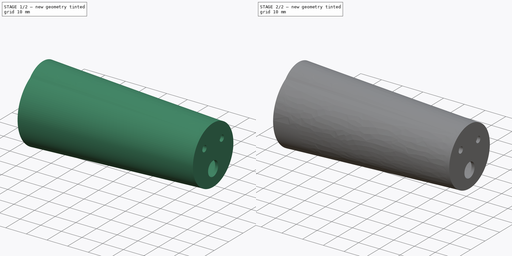
[diagram: build sequence overview — one tinted view per stage of 2, left to right]
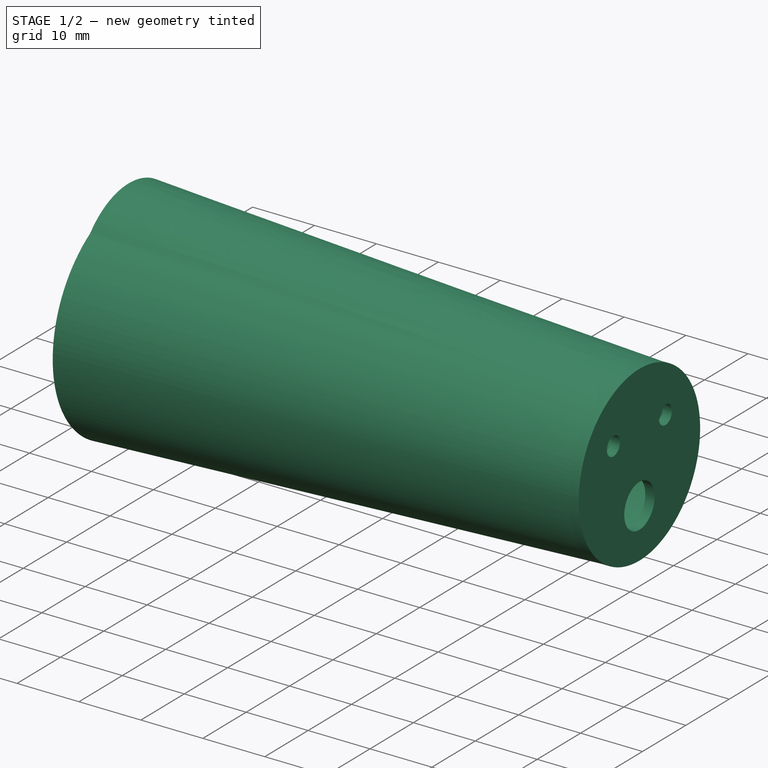
[diagram: stage 1 of 2 — iso view after this stage's code; geometry added in this stage tinted green]
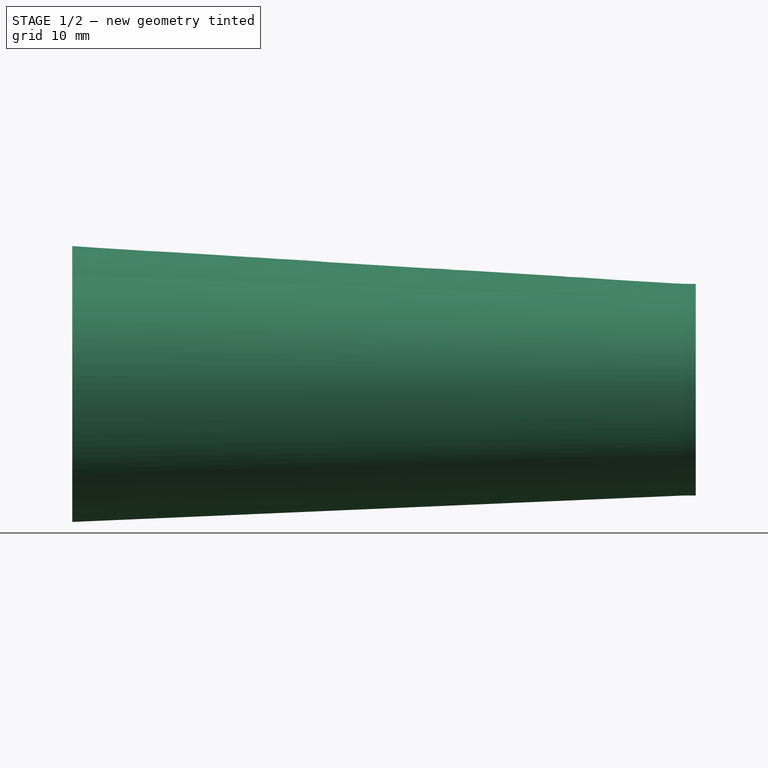
[diagram: stage 1 of 2 — front view after this stage's code; geometry added in this stage tinted green]
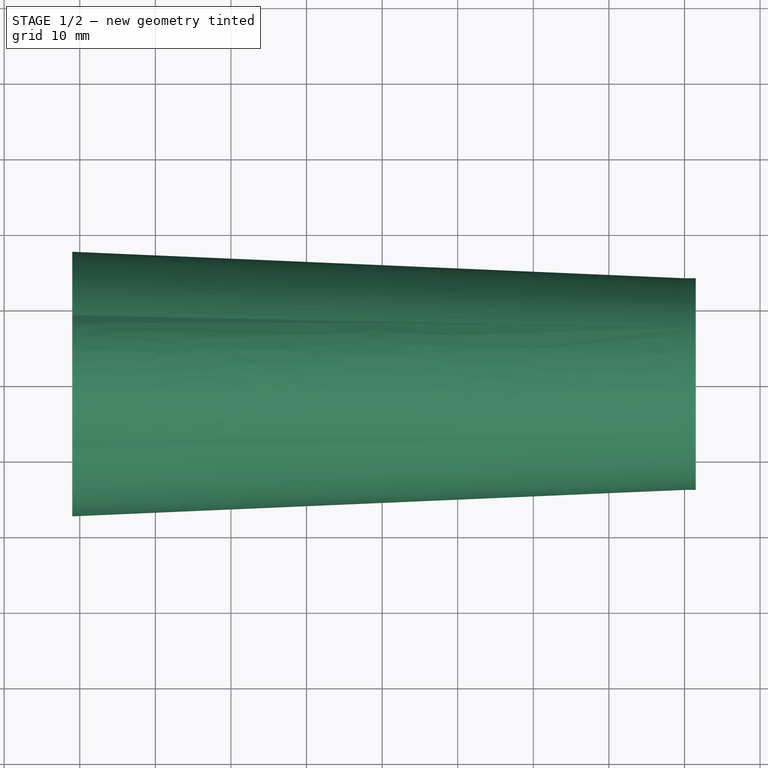
[diagram: stage 1 of 2 — top view after this stage's code; geometry added in this stage tinted green]
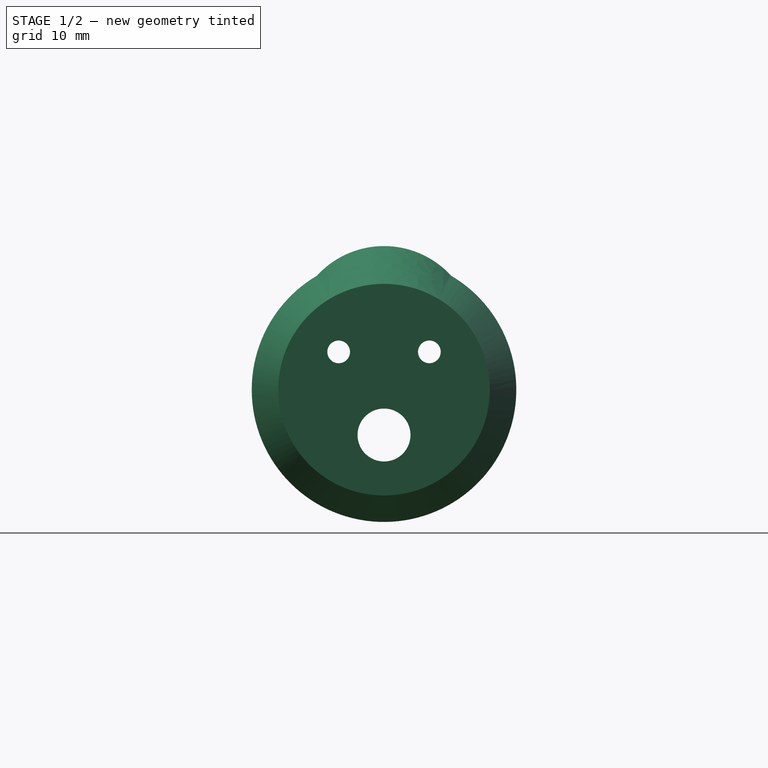
[diagram: stage 1 of 2 — right view after this stage's code; geometry added in this stage tinted green]
FCSTD DOCUMENT  (FreeCAD 0.19R24276 (Git))
Label: cap
License: All rights reserved
LicenseURL: http://en.wikipedia.org/wiki/All_rights_reserved
objects: Sketcher::SketchObject×4, PartDesign::AdditiveLoft×1, PartDesign::Pad×1, PartDesign::Pocket×1, PartDesign::Body×1
note: 11 computed .brp shape members not serialized (recipe doc carries the construction recipe); baked Part::Feature solids carry a one-line shape summary decoded from their .brp

FEATURE [Sketcher::SketchObject] Sketch  label="SmallEnd"
  FullyConstrained = true
  MapMode = 5
  Placement = pos=(0,0,0) rot=(0.57735,0.57735,0.57735;2.0944rad)
  Support = -> [YZ_Plane]
  sketch-geometry (2):
    g0: Circle CenterX=0 CenterY=0 CenterZ=0 NormalX=0 NormalY=0 NormalZ=1 AngleXU=0 Radius=12.5
    g1: Circle CenterX=0 CenterY=0 CenterZ=0 NormalX=0 NormalY=0 NormalZ=1 AngleXU=0 Radius=14
  constraints (4):
    c: Coincident(g0,g-1)
    c: Diameter(g0) = 25
    c: Coincident(g1,g0)
    c: Diameter(g1) = 28
FEATURE [Sketcher::SketchObject] Sketch001  label="BigEnd"
  AttachmentOffset = pos=(0,0,-81) rot=(0,0,1;0rad)
  FullyConstrained = true
  MapMode = 5
  Placement = pos=(-81,1.8e-14,-1.8e-14) rot=(0.57735,0.57735,0.57735;2.0944rad)
  Support = -> [YZ_Plane]
  sketch-geometry (4):
    g0: ArcOfCircle CenterX=0 CenterY=0 CenterZ=0 NormalX=0 NormalY=0 NormalZ=1 AngleXU=0 Radius=16 StartAngle=2.08757 EndAngle=7.33721
    g1: ArcOfCircle CenterX=0 CenterY=0 CenterZ=0 NormalX=0 NormalY=0 NormalZ=1 AngleXU=0 Radius=17.5 StartAngle=2.10191 EndAngle=7.32287
    g2: ArcOfCircle CenterX=0 CenterY=7 CenterZ=0 NormalX=0 NormalY=0 NormalZ=1 AngleXU=0 Radius=12 StartAngle=0.739755 EndAngle=2.40184
    g3: ArcOfCircle CenterX=0 CenterY=7 CenterZ=0 NormalX=0 NormalY=0 NormalZ=1 AngleXU=0 Radius=10.5 StartAngle=0.718377 EndAngle=2.42322
  constraints (13):
    c: Coincident(g0,g-1)
    c: Coincident(g1,g0)
    c: Diameter(g0) = 32
    c: Diameter(g1) = 35
    c: PointOnObject(g2,g-2)
    c: DistanceY(g2) = 7
    c: Diameter(g2) = 24
    c: Coincident(g2,g1)
    c: Coincident(g2,g1)
    c: Coincident(g3,g2)
    c: Diameter(g3) = 21
    c: Coincident(g0,g3)
    c: Coincident(g0,g3)
FEATURE [PartDesign::AdditiveLoft] AdditiveLoft
  Closed = false
  Placement = pos=(0,0,0) rot=(0.57735,0.57735,0.57735;2.0944rad)
  Profile = -> Sketch001
  Refine = true
  Ruled = false
  Sections = -> [Sketch]
FEATURE [Sketcher::SketchObject] Sketch002
  FullyConstrained = true
  MapMode = 5
  Support = -> [XY_Plane]
  sketch-geometry (14):
    g0: LineSegment StartX=-78.5 StartY=7.5 StartZ=0 EndX=-58 EndY=7.5 EndZ=0
    g1: LineSegment StartX=-58 StartY=-7.5 StartZ=0 EndX=-78.5 EndY=-7.5 EndZ=0
    g2: LineSegment StartX=-56 StartY=1.5 StartZ=0 EndX=-48 EndY=1.5 EndZ=0
    g3: LineSegment StartX=-48 StartY=-1.5 StartZ=0 EndX=-56 EndY=-1.5 EndZ=0
    g4: ArcOfCircle CenterX=-56 CenterY=-3.5 CenterZ=0 NormalX=0 NormalY=0 NormalZ=1 AngleXU=0 Radius=2 StartAngle=1.5708 EndAngle=3.14159
    g5: LineSegment StartX=-58 StartY=3.5 StartZ=0 EndX=-58 EndY=7.5 EndZ=0
    g6: ArcOfCircle CenterX=-56 CenterY=3.5 CenterZ=0 NormalX=0 NormalY=0 NormalZ=1 AngleXU=0 Radius=2 StartAngle=3.14159 EndAngle=4.71239
    g7: ArcOfCircle CenterX=-48 CenterY=-1e-16 CenterZ=0 NormalX=0 NormalY=0 NormalZ=1 AngleXU=0 Radius=1.5 StartAngle=4.71239 EndAngle=7.85398
    g8: ArcOfCircle CenterX=-78.5 CenterY=10 CenterZ=0 NormalX=0 NormalY=0 NormalZ=1 AngleXU=0 Radius=2.5 StartAngle=3.14159 EndAngle=4.71239
    g9: ArcOfCircle CenterX=-78.5 CenterY=-10 CenterZ=0 NormalX=0 NormalY=0 NormalZ=1 AngleXU=0 Radius=2.5 StartAngle=1.5708 EndAngle=3.14159
    g10: LineSegment StartX=-58 StartY=-3.5 StartZ=0 EndX=-58 EndY=-7.5 EndZ=0
    g11: LineSegment StartX=-81 StartY=10 StartZ=0 EndX=-86 EndY=10 EndZ=0
    g12: LineSegment StartX=-86 StartY=10 StartZ=0 EndX=-86 EndY=-10 EndZ=0
    g13: LineSegment StartX=-86 StartY=-10 StartZ=0 EndX=-81 EndY=-10 EndZ=0
  constraints (35):
    c: Horizontal(g11)
    c: Horizontal(g13)
    c: Vertical(g12)
    c: Horizontal(g0)
    c: Horizontal(g1)
    c: Horizontal(g2)
    c: Horizontal(g3)
    c: Diameter(g6) = 4
    c: Diameter(g8) = 5
    c: Diameter(g7) = 3
    c: Equal(g4,g6)
    c: Equal(g8,g9)
    c: DistanceX(g9,g-1) = 81
    c: DistanceY(g1,g0) = 15
    c: DistanceX(g9,g1) = 23
    c: DistanceX(g1,g3) = 10
    c: Perpendicular(g8,g11)
    c: Coincident(g11,g8)
    c: Coincident(g11,g12)
    c: Coincident(g13,g12)
    c: Tangent(g9,g1) = -1.5708
    c: Perpendicular(g9,g13)
    c: Coincident(g13,g9)
    c: Symmetric(g0,g1,g-1)
    c: DistanceX(g11,g8) = 5
    c: Tangent(g8,g0) = -1.5708
    c: Perpendicular(g0,g5) = 1.5708
    c: Tangent(g5,g6) = 1.5708
    c: Tangent(g6,g2) = -1.5708
    c: Tangent(g2,g7) = 1.5708
    c: Tangent(g3,g7) = 1.5708
    c: Tangent(g4,g3) = -1.5708
    c: Tangent(g4,g10) = -1.5708
    c: Perpendicular(g10,g1) = 4.71239
    c: Symmetric(g3,g2,g-1)
FEATURE [Sketcher::SketchObject] Sketch003
  FullyConstrained = true
  MapMode = 5
  Placement = pos=(0,0,0) rot=(0.57735,0.57735,0.57735;2.0944rad)
  Support = -> [YZ_Plane]
  sketch-geometry (4):
    g0: Circle CenterX=0 CenterY=0 CenterZ=0 NormalX=0 NormalY=0 NormalZ=1 AngleXU=0 Radius=14
    g1: Circle CenterX=-6 CenterY=5 CenterZ=0 NormalX=0 NormalY=0 NormalZ=1 AngleXU=0 Radius=1.5
    g2: Circle CenterX=6 CenterY=5 CenterZ=0 NormalX=0 NormalY=0 NormalZ=1 AngleXU=0 Radius=1.5
    g3: Circle CenterX=0 CenterY=-6 CenterZ=0 NormalX=0 NormalY=0 NormalZ=1 AngleXU=0 Radius=3.5
  constraints (10):
    c: Coincident(g0,g-1)
    c: Diameter(g0) = 28
    c: PointOnObject(g3,g-2)
    c: Diameter(g1) = 3
    c: Diameter(g2) = 3
    c: Diameter(g3) = 7
    c: DistanceY(g3,g0) = 6
    c: DistanceY(g0,g2) = 5
    c: Symmetric(g1,g2,g-2)
    c: DistanceX(g1,g2) = 12
FEATURE [PartDesign::Pad] Pad
  BaseFeature = -> AdditiveLoft
  Direction = (1,1,1)
  Length = 1.5
  Length2 = 100
  Placement = pos=(0,0,0) rot=(0.57735,0.57735,0.57735;2.0944rad)
  Profile = -> Sketch003
  Refine = true
  Type = 0
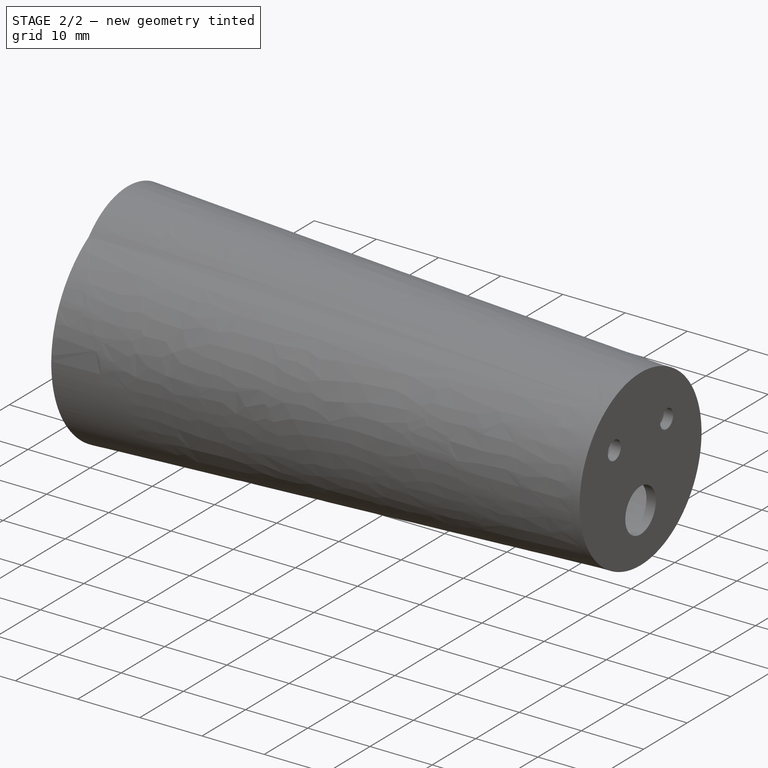
[diagram: stage 2 of 2 — iso view after this stage's code; geometry added in this stage tinted green]
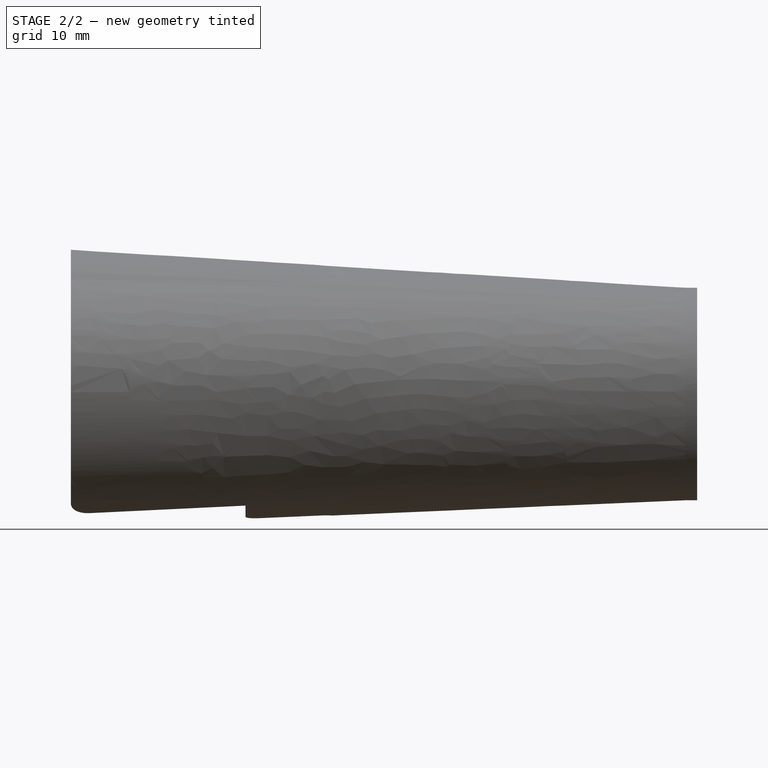
[diagram: stage 2 of 2 — front view after this stage's code; geometry added in this stage tinted green]
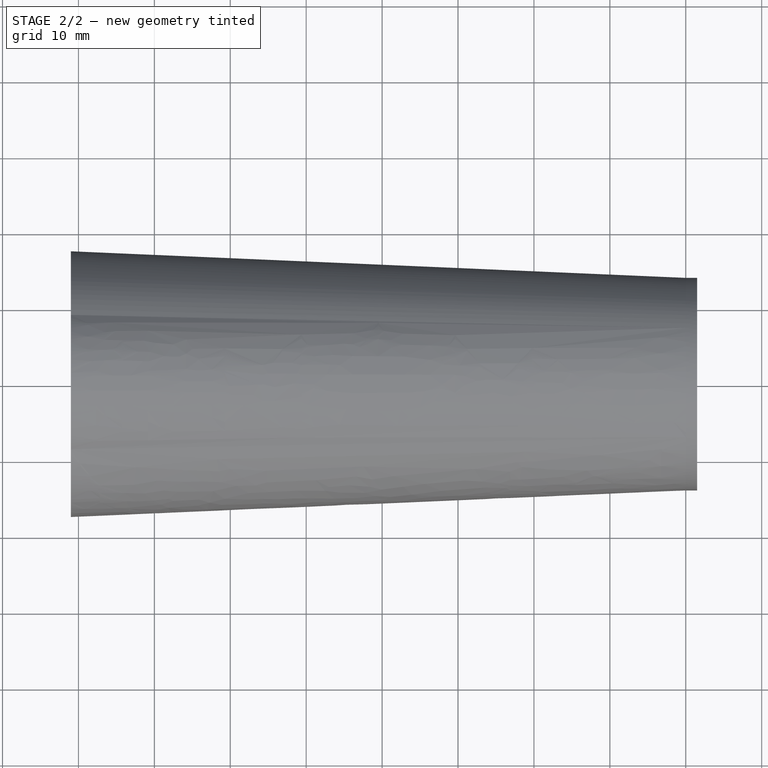
[diagram: stage 2 of 2 — top view after this stage's code; geometry added in this stage tinted green]
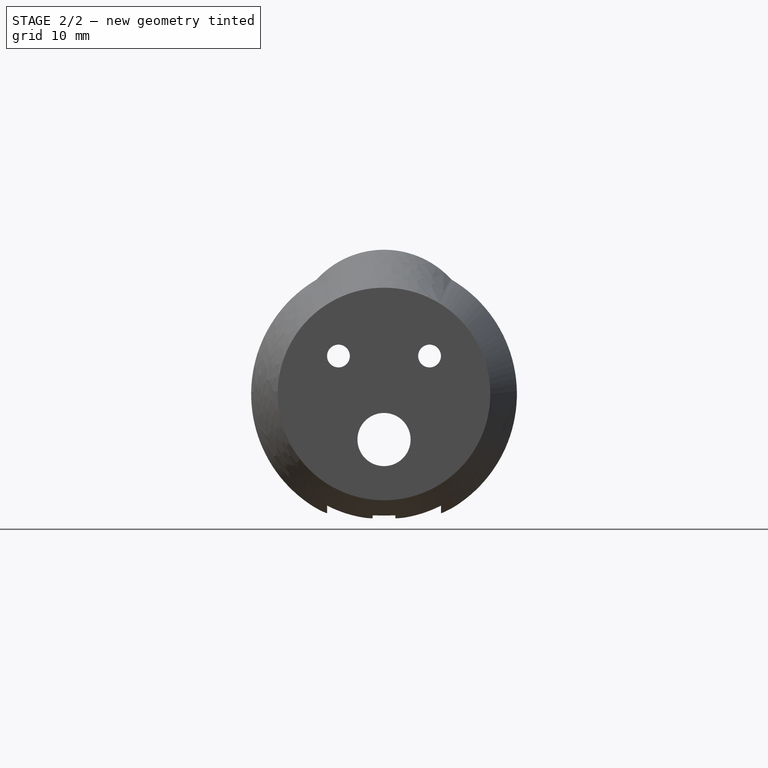
[diagram: stage 2 of 2 — right view after this stage's code; geometry added in this stage tinted green]
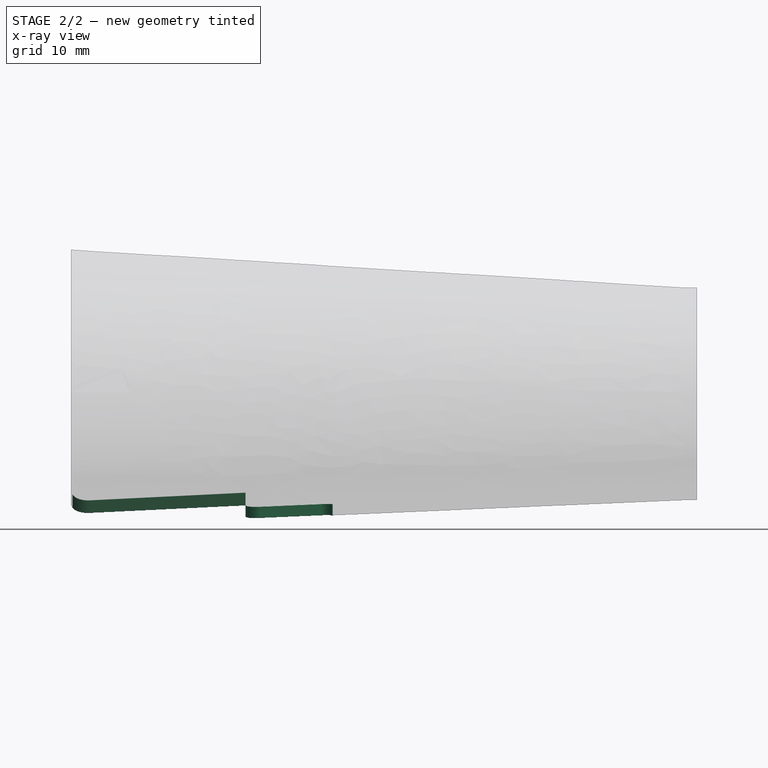
[diagram: stage 2 of 2 — x-ray composite at the front view; earlier geometry ghosted, this stage's added geometry solid]
FEATURE [PartDesign::Pocket] Pocket
  BaseFeature = -> Pad
  Length = 20
  Length2 = 100
  Placement = pos=(0,0,0) rot=(0.57735,0.57735,0.57735;2.0944rad)
  Profile = -> Sketch002
  Refine = true
  Type = 0
FEATURE [PartDesign::Body] Body
  Group = -> [Sketch,Sketch001,AdditiveLoft,Sketch002,Sketch003,Pad,Pocket]
  Origin = -> Origin
  Tip = -> Pocket
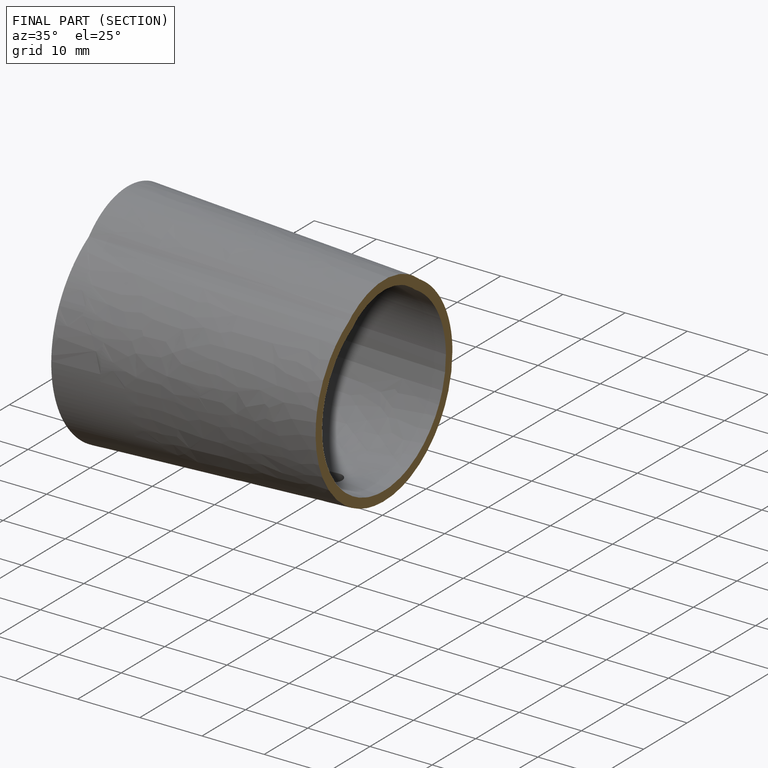
[diagram: finished part — half-section view (interior)]
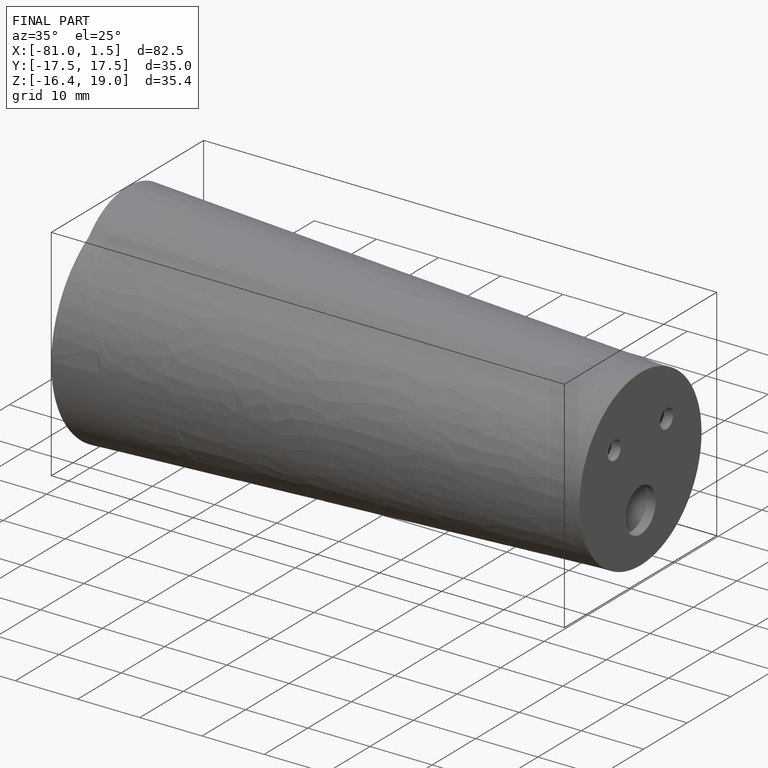
[diagram: finished part — iso view with bounding-box wireframe]
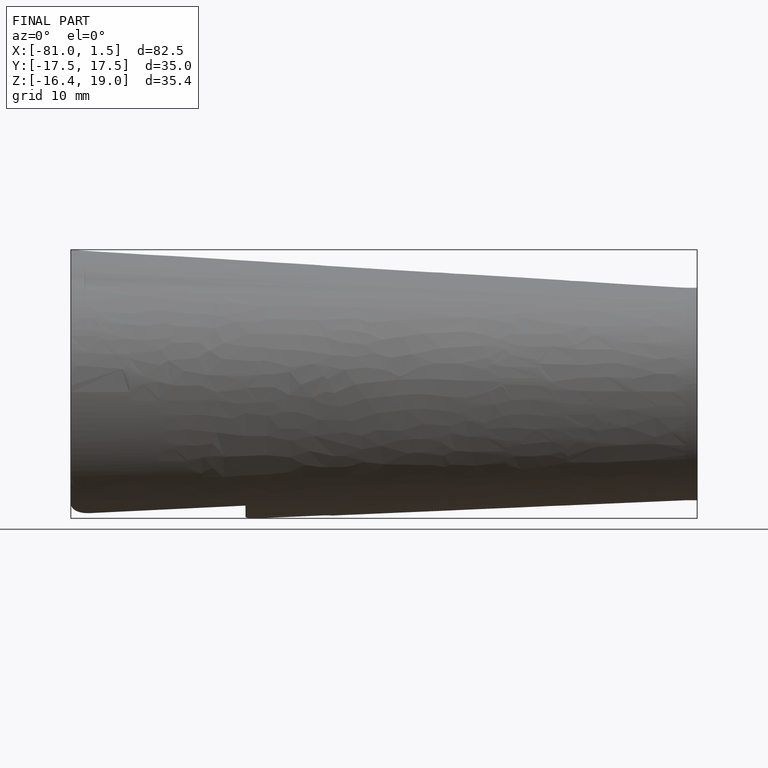
[diagram: finished part — front view with bounding-box wireframe]
